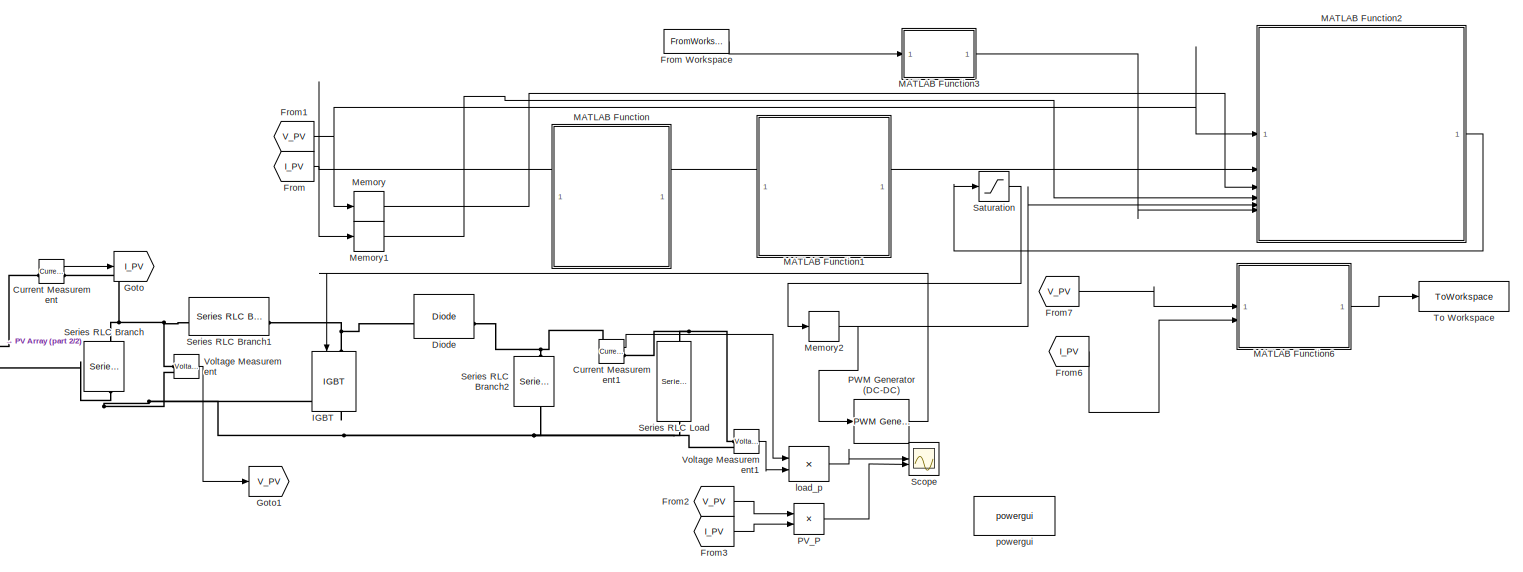
[diagram: root canvas - part 1/2, most of the canvas]
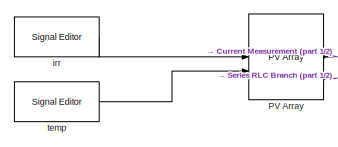
[diagram: root canvas - part 2/2, middle left region]
MODEL slx_ba2ca87a83f2
KIND model
CONFIG AbsTol = auto
CONFIG EnableMultiTasking = on
CONFIG FixedStep = auto
CONFIG MaxStep = auto
CONFIG MinStep = auto
CONFIG RelTol = 1e-3
CONFIG SampleTimeConstraint = Unconstrained
CONFIG SolverName = ode45
CONFIG StartTime = 0.0
CONFIG StopTime = 2.5
BLOCK [Reference] Current Measurement  REF=spsCurrentMeasurementLib/Current Measurement
  LibrarySourceBlock = sps_lib/Sensors and Measurements/Current Measurement
  SourceBlock = spsCurrentMeasurementLib/Current Measurement
  SourceType = Current Measurement
  UserDataPersistent = on
BLOCK [Reference] Current Measurement1  REF=spsCurrentMeasurementLib/Current Measurement
  LibrarySourceBlock = sps_lib/Sensors and Measurements/Current Measurement
  SourceBlock = spsCurrentMeasurementLib/Current Measurement
  SourceType = Current Measurement
  UserDataPersistent = on
BLOCK [Reference] Diode  REF=spsDiodeLib/Diode
  LibrarySourceBlock = sps_lib/Power Electronics/Diode
  SourceBlock = spsDiodeLib/Diode
  SourceType = Diode
BLOCK [From] From
  GotoTag = I_PV
BLOCK [FromWorkspace] From Workspace
  SampleTime = 0.01
  VariableName = P_pred4
BLOCK [From] From1
  GotoTag = V_PV
BLOCK [From] From2
  GotoTag = V_PV
BLOCK [From] From3
  GotoTag = I_PV
BLOCK [From] From6
  GotoTag = I_PV
BLOCK [From] From7
  GotoTag = V_PV
BLOCK [Goto] Goto
  GotoTag = I_PV
BLOCK [Goto] Goto1
  GotoTag = V_PV
  NameLocation = top
BLOCK [Reference] IGBT  REF=spsIGBTLib/IGBT
  LibrarySourceBlock = sps_lib/Power Electronics/IGBT
  NameLocation = left
  SourceBlock = spsIGBTLib/IGBT
  SourceType = IGBT
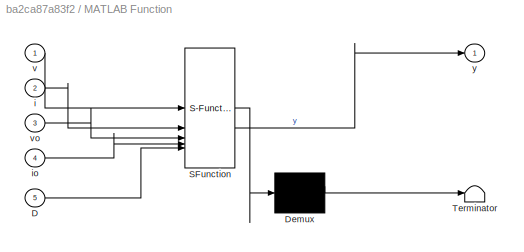
BLOCK [SubSystem] MATLAB Function
  ErrorFcn = Stateflow.Translate.translate
  PermitHierarchicalResolution = ExplicitOnly
  SFBlockType = MATLAB Function
  TreatAsAtomicUnit = on
BLOCK [Demux] MATLAB Function/ Demux 
  Outputs = 1
BLOCK [S-Function] MATLAB Function/ SFunction 
  EnableBusSupport = off
  FunctionName = sf_sfun
  PortCounts = [5 2]
  SFcnIsStateOwnerBlock = off
  SFunctionDeploymentMode = off
  Tag = Stateflow S-Function 2
BLOCK [Terminator] MATLAB Function/ Terminator 
BLOCK [Inport] MATLAB Function/D
  Port = 5
BLOCK [Inport] MATLAB Function/i
  Port = 2
BLOCK [Inport] MATLAB Function/io
  Port = 4
BLOCK [Inport] MATLAB Function/v
BLOCK [Inport] MATLAB Function/vo
  Port = 3
BLOCK [Outport] MATLAB Function/y
  VectorParamsAs1DForOutWhenUnconnected = off
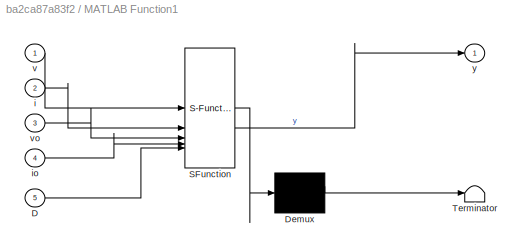
BLOCK [SubSystem] MATLAB Function1
  ErrorFcn = Stateflow.Translate.translate
  PermitHierarchicalResolution = ExplicitOnly
  SFBlockType = MATLAB Function
  TreatAsAtomicUnit = on
BLOCK [Demux] MATLAB Function1/ Demux 
  Outputs = 1
BLOCK [S-Function] MATLAB Function1/ SFunction 
  EnableBusSupport = off
  FunctionName = sf_sfun
  PortCounts = [5 2]
  SFcnIsStateOwnerBlock = off
  SFunctionDeploymentMode = off
  Tag = Stateflow S-Function 1
BLOCK [Terminator] MATLAB Function1/ Terminator 
BLOCK [Inport] MATLAB Function1/D
  Port = 5
BLOCK [Inport] MATLAB Function1/i
  Port = 2
BLOCK [Inport] MATLAB Function1/io
  Port = 4
BLOCK [Inport] MATLAB Function1/v
BLOCK [Inport] MATLAB Function1/vo
  Port = 3
BLOCK [Outport] MATLAB Function1/y
  VectorParamsAs1DForOutWhenUnconnected = off
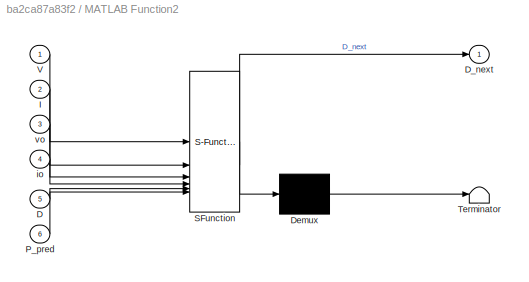
BLOCK [SubSystem] MATLAB Function2
  ErrorFcn = Stateflow.Translate.translate
  PermitHierarchicalResolution = ExplicitOnly
  SFBlockType = MATLAB Function
  TreatAsAtomicUnit = on
BLOCK [Demux] MATLAB Function2/ Demux 
  Outputs = 1
BLOCK [S-Function] MATLAB Function2/ SFunction 
  EnableBusSupport = off
  FunctionName = sf_sfun
  PortCounts = [6 2]
  SFcnIsStateOwnerBlock = off
  SFunctionDeploymentMode = off
  Tag = Stateflow S-Function 3
BLOCK [Terminator] MATLAB Function2/ Terminator 
BLOCK [Inport] MATLAB Function2/D
  Port = 5
BLOCK [Outport] MATLAB Function2/D_next
  VectorParamsAs1DForOutWhenUnconnected = off
BLOCK [Inport] MATLAB Function2/I
  Port = 2
BLOCK [Inport] MATLAB Function2/P_pred
  Port = 6
BLOCK [Inport] MATLAB Function2/V
BLOCK [Inport] MATLAB Function2/io
  Port = 4
BLOCK [Inport] MATLAB Function2/vo
  Port = 3
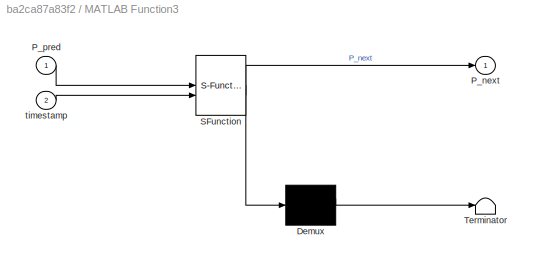
BLOCK [SubSystem] MATLAB Function3
  ErrorFcn = Stateflow.Translate.translate
  PermitHierarchicalResolution = ExplicitOnly
  SFBlockType = MATLAB Function
  TreatAsAtomicUnit = on
BLOCK [Demux] MATLAB Function3/ Demux 
  Outputs = 1
BLOCK [S-Function] MATLAB Function3/ SFunction 
  EnableBusSupport = off
  FunctionName = sf_sfun
  PortCounts = [2 2]
  SFcnIsStateOwnerBlock = off
  SFunctionDeploymentMode = off
  Tag = Stateflow S-Function 4
BLOCK [Terminator] MATLAB Function3/ Terminator 
BLOCK [Outport] MATLAB Function3/P_next
BLOCK [Inport] MATLAB Function3/P_pred
BLOCK [Inport] MATLAB Function3/timestamp
  Port = 2
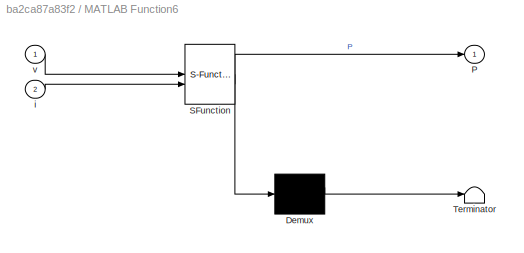
BLOCK [SubSystem] MATLAB Function6
  ErrorFcn = Stateflow.Translate.translate
  PermitHierarchicalResolution = ExplicitOnly
  SFBlockType = MATLAB Function
  TreatAsAtomicUnit = on
BLOCK [Demux] MATLAB Function6/ Demux 
  Outputs = 1
BLOCK [S-Function] MATLAB Function6/ SFunction 
  EnableBusSupport = off
  FunctionName = sf_sfun
  PortCounts = [2 2]
  SFcnIsStateOwnerBlock = off
  SFunctionDeploymentMode = off
  Tag = Stateflow S-Function 7
BLOCK [Terminator] MATLAB Function6/ Terminator 
BLOCK [Outport] MATLAB Function6/P
BLOCK [Inport] MATLAB Function6/i
  Port = 2
BLOCK [Inport] MATLAB Function6/v
BLOCK [Memory] Memory
BLOCK [Memory] Memory1
BLOCK [Memory] Memory2
BLOCK [Reference] PV Array  REF=spsPVArrayLib/PV Array
  LibrarySourceBlock = sps_lib/Sources/PV Array
  SourceBlock = spsPVArrayLib/PV Array
  SourceType = PV array
BLOCK [Product] PV_P
BLOCK [Reference] PWM Generator (DC-DC)  REF=spsPWMGeneratorDCDCLib/PWM Generator
(DC-DC)
  LibrarySourceBlock = sps_lib/Power Electronics/Power Electronics Control/PWM Generator\n(DC-DC)
  SourceBlock = spsPWMGeneratorDCDCLib/PWM Generator\n(DC-DC)
  SourceType = PWM Generator (DC-DC)
BLOCK [Saturate] Saturation
  LowerLimit = 0
  UpperLimit = 0.9
BLOCK [Scope] Scope
  ActiveDisplayYMaximum = 0.88536405880057
  ActiveDisplayYMinimum = -0.098373784311174411
  ContainerLayout = {"WindowBounds":[80,60,1145,766]}
  Floating = off
  GraphicalSettings = {"Style":{"BackgroundColor":[0.12941176470588237,0.12941176470588237,0.12941176470588237],"AxesColor":[0.07058823529411765,0.07058823529411765,0.07058823529411765],"LabelsColor":[0.8509803921568627,0.8509803921568627,0.8509803921568627],"PreserveColors":false,"Visible":[true,true],"LineStyle":["-","-"],"LineWidth":[1.5,1.5],"BarWidth":[0.9,0.9],"LineColor":[[1,0.9098039215686274,0.3921568627450980...<+2774ch>
  LayoutDimensionsString = [2 1]
  MultipleDisplayCache = [{"MaxYLimMag":0.88536405880057,"MaxYLimReal":0.88536405880057,"MinYLimMag":0,"MinYLimReal":-0.098373784311174411,"PlotAsMagnitudePhase":false,"ShowGrid":true,"ShowLegend":false,"Title":"%<SignalLabel>","YLabel":""},{"MaxYLimMag":1.600585158403351,"MaxYLimReal":1.600585158403351,"MinYLimMag":0,"MinYLimReal":-0.1810038705471021,"PlotAsMagnitudePhase":false,"ShowGrid":true,"ShowLegend":false,"Title"...<+31ch>
  NumInputPorts = 2
  ScopeFrameLocation = container
  Visible = on
  WasSavedAsWebScope = on
  WindowPosition = [80.000000,38.000000,1145.000000,766.000000,]
BLOCK [Reference] Series RLC Branch  REF=spsSeriesRLCBranchLib/Series RLC Branch
  LibrarySourceBlock = sps_lib/Passives/Series RLC Branch
  NameLocation = left
  SourceBlock = spsSeriesRLCBranchLib/Series RLC Branch
  SourceType = Series RLC Branch
BLOCK [Reference] Series RLC Branch1  REF=spsSeriesRLCBranchLib/Series RLC Branch
  LibrarySourceBlock = sps_lib/Passives/Series RLC Branch
  SourceBlock = spsSeriesRLCBranchLib/Series RLC Branch
  SourceType = Series RLC Branch
BLOCK [Reference] Series RLC Branch2  REF=spsSeriesRLCBranchLib/Series RLC Branch
  LibrarySourceBlock = sps_lib/Passives/Series RLC Branch
  NameLocation = left
  SourceBlock = spsSeriesRLCBranchLib/Series RLC Branch
  SourceType = Series RLC Branch
BLOCK [Reference] Series RLC Load  REF=spsSeriesRLCLoadLib/Series RLC Load
  AttributesFormatString = \n
  LibrarySourceBlock = sps_lib/Passives/Series RLC Load
  NameLocation = left
  SourceBlock = spsSeriesRLCLoadLib/Series RLC Load
  SourceType = Series RLC Load
BLOCK [ToWorkspace] To Workspace
  FixptAsFi = on
  MaxDataPoints = inf
  SampleTime = -1
  SaveFormat = Timeseries
  VariableName = P_algo
BLOCK [Reference] Voltage Measurement  REF=spsVoltageMeasurementLib/Voltage Measurement
  LibrarySourceBlock = sps_lib/Sensors and Measurements/Voltage Measurement
  SourceBlock = spsVoltageMeasurementLib/Voltage Measurement
  SourceType = Voltage Measurement
  UserDataPersistent = on
BLOCK [Reference] Voltage Measurement1  REF=spsVoltageMeasurementLib/Voltage Measurement
  LibrarySourceBlock = sps_lib/Sensors and Measurements/Voltage Measurement
  SourceBlock = spsVoltageMeasurementLib/Voltage Measurement
  SourceType = Voltage Measurement
  UserDataPersistent = on
BLOCK [Reference] irr  REF=SignalEditorBlockLib/Signal Editor
  LibrarySourceBlock = simulink/Sources/Signal Editor
  SourceBlock = SignalEditorBlockLib/Signal Editor
  SourceType = SignalEditor
  UserDataPersistent = on
BLOCK [Product] load_p
BLOCK [Reference] powergui  REF=sps_lib/powergui
  LibrarySourceBlock = sps_lib/powergui
  Priority = 1
  SourceBlock = sps_lib/powergui
  SourceType = PSB option menu block
BLOCK [Reference] temp  REF=SignalEditorBlockLib/Signal Editor
  LibrarySourceBlock = simulink/Sources/Signal Editor
  SourceBlock = SignalEditorBlockLib/Signal Editor
  SourceType = SignalEditor
  UserDataPersistent = on
LINE Current Measurement1:1 -> load_p:1
LINE Current Measurement:1 -> Goto:1
LINE From Workspace:1 -> MATLAB Function3:1
NET From1:1 -> MATLAB Function2:1, Memory:1
LINE From2:1 -> PV_P:1
LINE From3:1 -> PV_P:2
LINE From6:1 -> MATLAB Function6:2
LINE From7:1 -> MATLAB Function6:1
NET From:1 -> MATLAB Function2:2, Memory1:1
LINE MATLAB Function2:1 -> Saturation:1
LINE MATLAB Function3:1 -> MATLAB Function2:6
LINE MATLAB Function6:1 -> To Workspace:1
LINE Memory1:1 -> MATLAB Function2:4
NET Memory2:1 -> MATLAB Function2:5, PWM Generator (DC-DC):1
LINE Memory:1 -> MATLAB Function2:3
LINE PV_P:1 -> Scope:2
LINE PWM Generator (DC-DC):1 -> IGBT:1
LINE Saturation:1 -> Memory2:1
LINE Voltage Measurement1:1 -> load_p:2
LINE Voltage Measurement:1 -> Goto1:1
LINE irr:1 -> PV Array:1
LINE load_p:1 -> Scope:1
LINE temp:1 -> PV Array:2
PNET net1: Current Measurement1:LConn1 -- Diode:RConn1 -- Series RLC Branch2:LConn1
PNET net2: Current Measurement1:RConn1 -- Series RLC Load:LConn1 -- Voltage Measurement1:LConn1
PLINE Current Measurement:LConn1 -- PV Array:RConn1
PNET net3: Current Measurement:RConn1 -- Series RLC Branch1:LConn1 -- Series RLC Branch:LConn1 -- Voltage Measurement:LConn1
PNET net4: Diode:LConn1 -- IGBT:LConn1 -- Series RLC Branch1:RConn1
PNET net5: IGBT:RConn1 -- PV Array:RConn2 -- Series RLC Branch2:RConn1 -- Series RLC Branch:RConn1 -- Series RLC Load:RConn1 -- Voltage Measurement1:LConn2 -- Voltage Measurement:LConn2
note: NET lines group one-source signal fan-out (src -> all destinations, sorted); 1:1 wires keep LINE; PNET lines group multi-terminal physical nets as a canonical sorted terminal list (undirected conserving connections); 2-terminal nets keep the pairwise PLINE form
CHART MATLAB Function1 states=1 transitions=1
  STATE_LABEL 'eML_blk_kernel()'
  STATE_LABEL 'SCRIPT:\nfunction y = po(v, i, vo, io, D)\n% MPPT Perturb & Observe (P&O)\n\nd = 5e-5;      % step size\neps = 1e-6;    % small tolerance\n\n% Power\nP  = v  * i;\nPo = vo * io;\n\n% Delta\ndP = P - Po;\ndV = v - vo;\n\nm = D;\n\nif abs(dP) < eps\n    % Power not change -> keep duty\n    m = D;\nelse\n    if dP > 0\n        % Power increased\n        if dV > 0\n            m = D + d;\n        else\n            m = D - d;\n ...<+202ch>'
CHART MATLAB Function states=1 transitions=1
  STATE_LABEL 'eML_blk_kernel()'
  STATE_LABEL 'SCRIPT:\nfunction y = inc(v, i, vo, io, D)\n\nd = 5e-5;\neps = 1e-6;\n\ndv = v - vo;\ndi = i - io;\n\nm = D;\n\nif abs(dv) < eps\n    if abs(di) < eps\n        m = D;\n    elseif di > 0\n        m = D - d;\n    else\n        m = D + d;\n    end\nelse\n    if abs(di/dv + i/v) < eps\n        m = D;\n    elseif di/dv > -i/v\n        m = D - d;\n    else\n        m = D + d;\n    end\nend\n\n% limit duty cycle\nm = min(max(m,0),1);...<+13ch>'
CHART MATLAB Function2 states=1 transitions=1
  STATE_LABEL 'eML_blk_kernel()'
  STATE_LABEL 'SCRIPT:\nfunction D_next = fcn(V,I,vo,io,D,P_pred)\n%#codegen\n% AI-MPPT with Temporal Fusion (PAST + FUTURE)\n% Codegen & Simulink safe implementation\n\n%% ===== Persistent States =====\npersistent init V_f I_f P_hist V_hist ai_conf momentum converge_cnt pred_mom\n\nif isempty(init)\n    init = true;\n    V_f = V;\n    I_f = I;\n\n    P_hist = ones(10,1)*(V*I);\n    V_hist = ones(10,1)*V;\n\n    ai_conf = 0.8;\n ...<+3595ch>'
CHART MATLAB Function3 states=1 transitions=1
  STATE_LABEL 'eML_blk_kernel()'
  STATE_LABEL 'SCRIPT:\nfunction P_next = get_P_pred(P_pred, timestamp)\n    persistent k\n    if timestamp < 0.10\n        P_next = 0; % หรือค่าที่เหมาะสม\n        return;\n    end\n\n    if isempty(k)\n        k = 1;\n    end\n\n    P_next = P_pred(k);\n    k = k + 1;\n    if k > length(P_pred)\n        k = length(P_pred); % หรือวนกลับ = 1\n    end\nend\n'
CHART MATLAB Function6 states=1 transitions=1
  STATE_LABEL 'eML_blk_kernel()'
  STATE_LABEL 'SCRIPT:\nfunction P = P_algo(v, i)\n% v,i เป็นค่าที่เกิดจาก duty cycle ของ algorithm ณ เวลานั้น\nP = v .* i;   % instantaneous PV power\nend\n'
CHART  states=0 transitions=0
CHART  states=0 transitions=0
CHART  states=0 transitions=0
CHART  states=0 transitions=0
CHART  states=0 transitions=0
